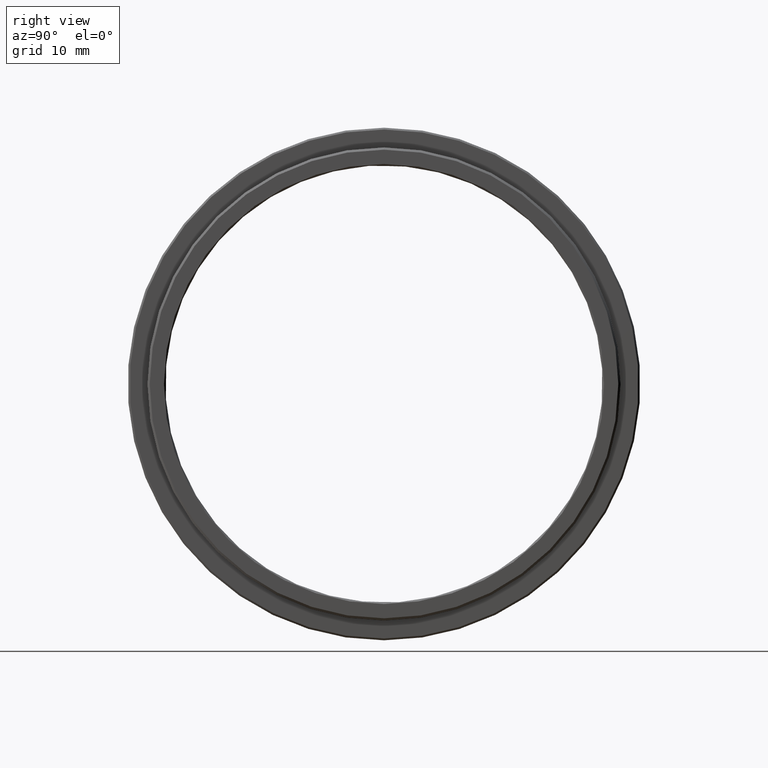
[diagram: clean part render]
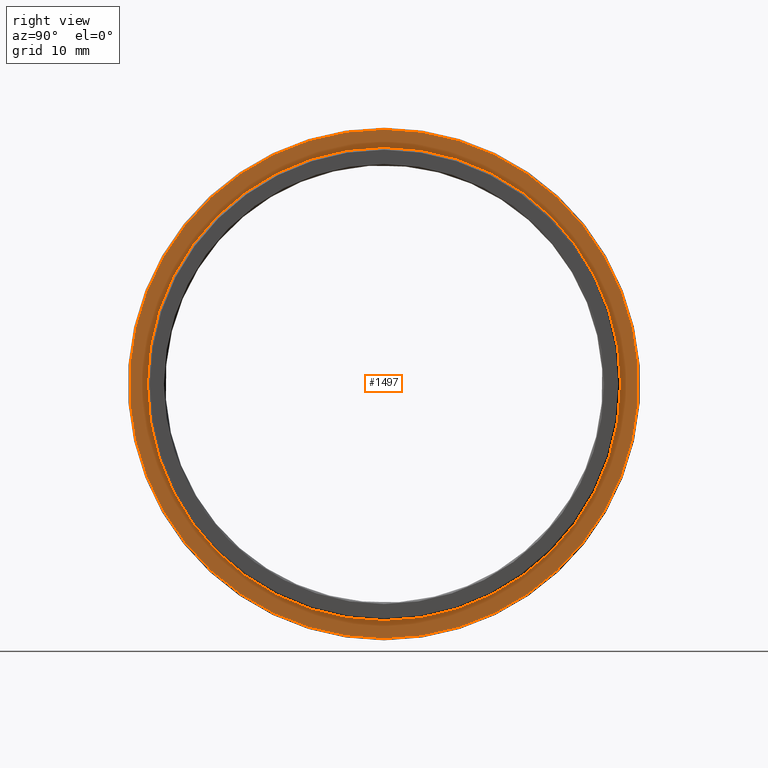
[diagram: same view with one face highlighted and labeled with its STEP entity id]
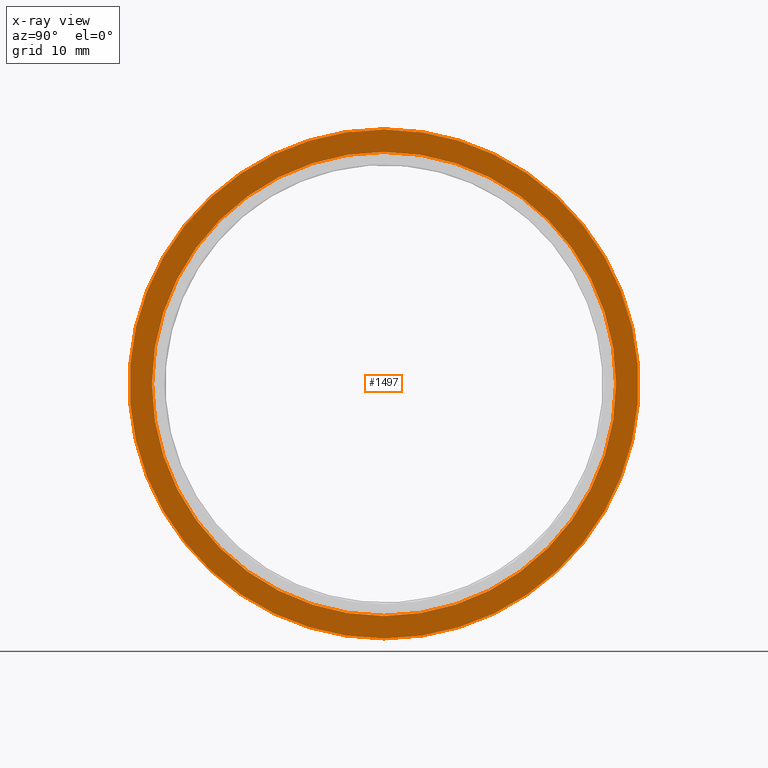
[diagram: x-ray of the same camera — body ghosted, the highlighted face saturated]
A machine part, right view. The second image highlights one B-rep face of the part: STEP entity #1497.
The next image is the same camera in x-ray: the body ghosted, the highlighted face saturated — about 0% of this face is hidden behind the body in this view.
In plain terms, the highlighted planar face has unit normal (1, 0, 0).
Its self-contained STEP definition (entity closure, byte-faithful):
#49 = CARTESIAN_POINT ( 'NONE',  ( 3.525999999999982926, -20.10857142857141966, 0.000000000000000000 ) ) ;
#63 = DIRECTION ( 'NONE',  ( 1.000000000000000000, 0.000000000000000000, 0.000000000000000000 ) ) ;
#70 = DIRECTION ( 'NONE',  ( 0.000000000000000000, 0.000000000000000000, -1.000000000000000000 ) ) ;
#74 = ORIENTED_EDGE ( 'NONE', *, *, #143, .T. ) ;
#110 = CARTESIAN_POINT ( 'NONE',  ( 3.525999999999982926, -20.10857142857141966, 25.30000000000000071 ) ) ;
#143 = EDGE_CURVE ( 'NONE', #1608, #1154, #1005, .T. ) ;
#175 = DIRECTION ( 'NONE',  ( 0.000000000000000000, 0.000000000000000000, -1.000000000000000000 ) ) ;
#186 = DIRECTION ( 'NONE',  ( 1.000000000000000000, 0.000000000000000000, 0.000000000000000000 ) ) ;
#263 = AXIS2_PLACEMENT_3D ( 'NONE', #1338, #1461, #175 ) ;
#275 = CIRCLE ( 'NONE', #926, 25.30000000000000071 ) ;
#282 = ORIENTED_EDGE ( 'NONE', *, *, #309, .F. ) ;
#302 = EDGE_LOOP ( 'NONE', ( #282, #889 ) ) ;
#304 = FACE_BOUND ( 'NONE', #302, .T. ) ;
#309 = EDGE_CURVE ( 'NONE', #664, #1227, #453, .T. ) ;
#361 = PLANE ( 'NONE',  #1022 ) ;
#401 = AXIS2_PLACEMENT_3D ( 'NONE', #794, #1428, #1302 ) ;
#453 = CIRCLE ( 'NONE', #263, 25.30000000000000071 ) ;
#499 = EDGE_LOOP ( 'NONE', ( #1382, #74 ) ) ;
#606 = CARTESIAN_POINT ( 'NONE',  ( 3.525999999999982926, -20.10857142857141966, 0.000000000000000000 ) ) ;
#664 = VERTEX_POINT ( 'NONE', #110 ) ;
#702 = AXIS2_PLACEMENT_3D ( 'NONE', #49, #186, #70 ) ;
#794 = CARTESIAN_POINT ( 'NONE',  ( 3.525999999999982926, -20.10857142857141966, 0.000000000000000000 ) ) ;
#818 = CARTESIAN_POINT ( 'NONE',  ( 3.525999999999982926, -20.10857142857141966, 27.74999999999999289 ) ) ;
#826 = CARTESIAN_POINT ( 'NONE',  ( 3.525999999999982926, -20.10857142857141966, 0.000000000000000000 ) ) ;
#857 = CIRCLE ( 'NONE', #702, 27.74999999999999289 ) ;
#889 = ORIENTED_EDGE ( 'NONE', *, *, #1234, .F. ) ;
#926 = AXIS2_PLACEMENT_3D ( 'NONE', #826, #63, #955 ) ;
#955 = DIRECTION ( 'NONE',  ( 0.000000000000000000, 0.000000000000000000, -1.000000000000000000 ) ) ;
#965 = DIRECTION ( 'NONE',  ( 1.000000000000000000, 0.000000000000000000, 0.000000000000000000 ) ) ;
#1005 = CIRCLE ( 'NONE', #401, 27.74999999999999289 ) ;
#1022 = AXIS2_PLACEMENT_3D ( 'NONE', #606, #965, #1342 ) ;
#1146 = CARTESIAN_POINT ( 'NONE',  ( 3.525999999999982926, -20.10857142857141611, -27.74999999999999289 ) ) ;
#1154 = VERTEX_POINT ( 'NONE', #818 ) ;
#1183 = CARTESIAN_POINT ( 'NONE',  ( 3.525999999999982926, -20.10857142857141611, -25.30000000000000071 ) ) ;
#1227 = VERTEX_POINT ( 'NONE', #1183 ) ;
#1234 = EDGE_CURVE ( 'NONE', #1227, #664, #275, .T. ) ;
#1302 = DIRECTION ( 'NONE',  ( 0.000000000000000000, 0.000000000000000000, -1.000000000000000000 ) ) ;
#1338 = CARTESIAN_POINT ( 'NONE',  ( 3.525999999999982926, -20.10857142857141966, 0.000000000000000000 ) ) ;
#1342 = DIRECTION ( 'NONE',  ( 0.000000000000000000, 0.000000000000000000, -1.000000000000000000 ) ) ;
#1382 = ORIENTED_EDGE ( 'NONE', *, *, #1447, .T. ) ;
#1387 = FACE_OUTER_BOUND ( 'NONE', #499, .T. ) ;
#1428 = DIRECTION ( 'NONE',  ( 1.000000000000000000, 0.000000000000000000, 0.000000000000000000 ) ) ;
#1447 = EDGE_CURVE ( 'NONE', #1154, #1608, #857, .T. ) ;
#1461 = DIRECTION ( 'NONE',  ( 1.000000000000000000, 0.000000000000000000, 0.000000000000000000 ) ) ;
#1497 = ADVANCED_FACE ( 'NONE', ( #1387, #304 ), #361, .T. ) ;
#1608 = VERTEX_POINT ( 'NONE', #1146 ) ;